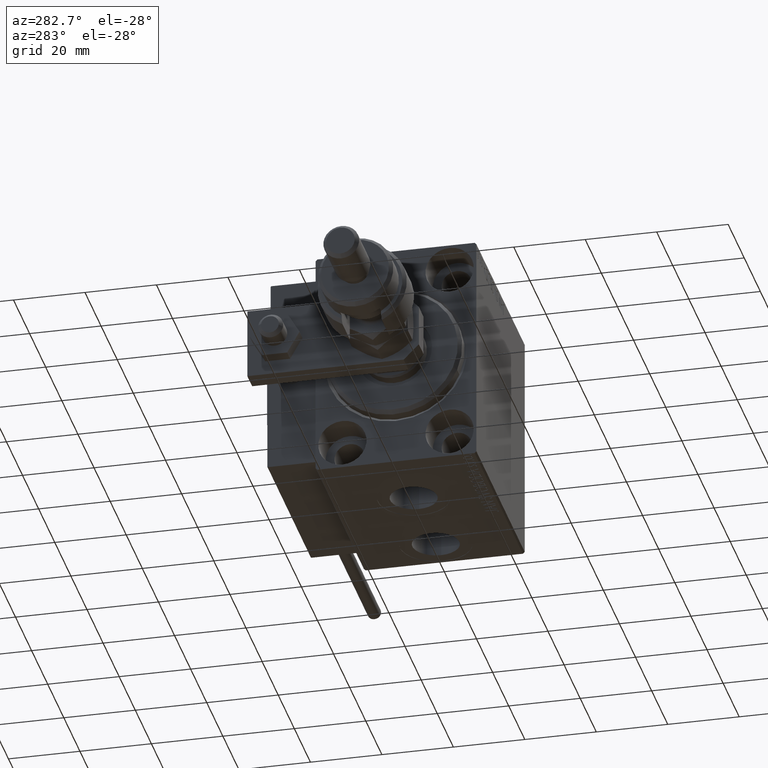
[diagram: clean part render]
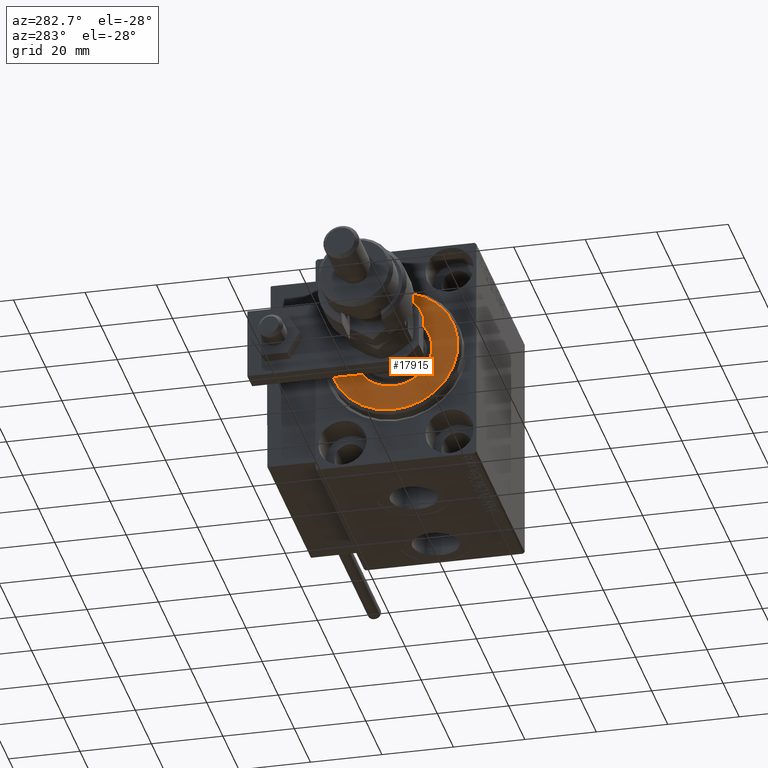
[diagram: same view with one face highlighted and labeled with its STEP entity id]
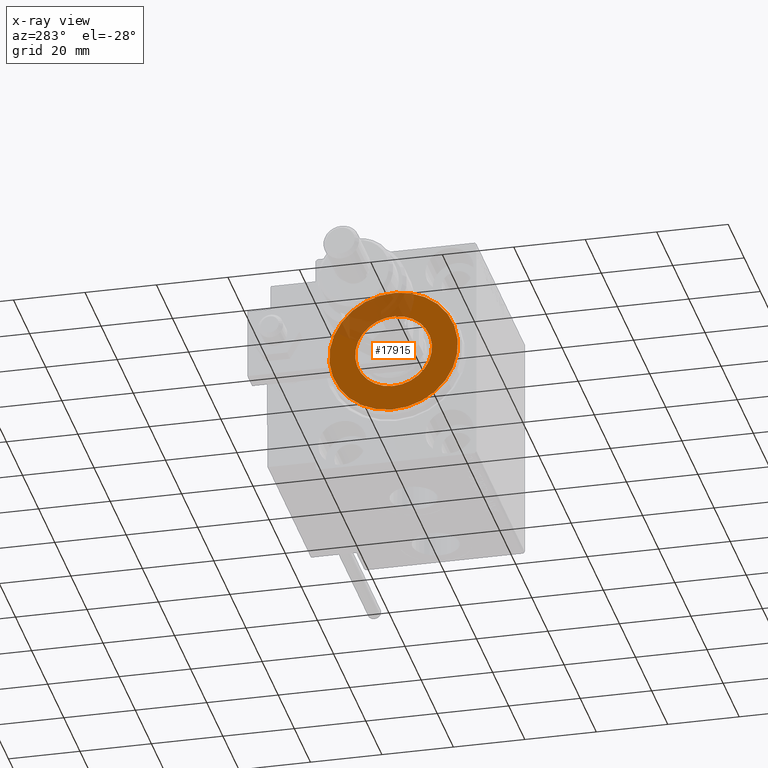
[diagram: x-ray of the same camera — body ghosted, the highlighted face saturated]
A machine part, auxiliary view. The second image highlights one B-rep face of the part: STEP entity #17915.
The next image is the same camera in x-ray: the body ghosted, the highlighted face saturated — about 24% of this face is hidden behind the body in this view.
In plain terms, the highlighted planar face has unit normal (-1, 0, 0).
Its self-contained STEP definition (entity closure, byte-faithful):
#976 = PLANE ( 'NONE',  #7805 ) ;
#1003 = DIRECTION ( 'NONE',  ( 0.000000000000000000, 0.000000000000000000, -1.000000000000000000 ) ) ;
#3714 = CARTESIAN_POINT ( 'NONE',  ( 3.000000000000000000, 0.000000000000000000, 0.000000000000000000 ) ) ;
#4014 = DIRECTION ( 'NONE',  ( 0.000000000000000000, 0.000000000000000000, -1.000000000000000000 ) ) ;
#4288 = VERTEX_POINT ( 'NONE', #52879 ) ;
#4557 = FACE_BOUND ( 'NONE', #44961, .T. ) ;
#6260 = VERTEX_POINT ( 'NONE', #15429 ) ;
#7047 = CIRCLE ( 'NONE', #39527, 10.75000000000000000 ) ;
#7805 = AXIS2_PLACEMENT_3D ( 'NONE', #12800, #29838, #4014 ) ;
#10299 = CIRCLE ( 'NONE', #41032, 10.75000000000000000 ) ;
#12325 = EDGE_CURVE ( 'NONE', #23539, #4288, #10299, .T. ) ;
#12800 = CARTESIAN_POINT ( 'NONE',  ( 3.000000000000000000, 0.000000000000000000, 0.000000000000000000 ) ) ;
#13237 = DIRECTION ( 'NONE',  ( 0.000000000000000000, 0.000000000000000000, -1.000000000000000000 ) ) ;
#14355 = DIRECTION ( 'NONE',  ( 1.000000000000000000, -0.000000000000000000, 0.000000000000000000 ) ) ;
#15429 = CARTESIAN_POINT ( 'NONE',  ( 3.000000000000000000, 0.000000000000000000, 17.99999999999998934 ) ) ;
#15696 = VERTEX_POINT ( 'NONE', #19707 ) ;
#16347 = DIRECTION ( 'NONE',  ( 0.000000000000000000, 0.000000000000000000, -1.000000000000000000 ) ) ;
#17913 = CIRCLE ( 'NONE', #24824, 17.99999999999998934 ) ;
#17915 = ADVANCED_FACE ( 'NONE', ( #50472, #4557 ), #976, .T. ) ;
#19707 = CARTESIAN_POINT ( 'NONE',  ( 3.000000000000000000, 2.265596578422602607E-15, -17.99999999999998934 ) ) ;
#20157 = AXIS2_PLACEMENT_3D ( 'NONE', #52023, #14355, #27012 ) ;
#21237 = EDGE_CURVE ( 'NONE', #4288, #23539, #7047, .T. ) ;
#22957 = CARTESIAN_POINT ( 'NONE',  ( 3.000000000000000000, 0.000000000000000000, 0.000000000000000000 ) ) ;
#23410 = ORIENTED_EDGE ( 'NONE', *, *, #12325, .T. ) ;
#23539 = VERTEX_POINT ( 'NONE', #28327 ) ;
#24824 = AXIS2_PLACEMENT_3D ( 'NONE', #3714, #37778, #16347 ) ;
#27012 = DIRECTION ( 'NONE',  ( 0.000000000000000000, 0.000000000000000000, -1.000000000000000000 ) ) ;
#28327 = CARTESIAN_POINT ( 'NONE',  ( 3.000000000000000000, 0.000000000000000000, 10.75000000000000000 ) ) ;
#29838 = DIRECTION ( 'NONE',  ( 1.000000000000000000, -0.000000000000000000, 0.000000000000000000 ) ) ;
#31219 = EDGE_LOOP ( 'NONE', ( #47622, #43116 ) ) ;
#35590 = EDGE_CURVE ( 'NONE', #15696, #6260, #49146, .T. ) ;
#37778 = DIRECTION ( 'NONE',  ( 1.000000000000000000, -0.000000000000000000, 0.000000000000000000 ) ) ;
#38249 = CARTESIAN_POINT ( 'NONE',  ( 3.000000000000000000, 0.000000000000000000, 0.000000000000000000 ) ) ;
#39173 = DIRECTION ( 'NONE',  ( -1.000000000000000000, 0.000000000000000000, -0.000000000000000000 ) ) ;
#39527 = AXIS2_PLACEMENT_3D ( 'NONE', #22957, #39173, #1003 ) ;
#41032 = AXIS2_PLACEMENT_3D ( 'NONE', #38249, #50911, #13237 ) ;
#43116 = ORIENTED_EDGE ( 'NONE', *, *, #35590, .T. ) ;
#44961 = EDGE_LOOP ( 'NONE', ( #23410, #49787 ) ) ;
#47622 = ORIENTED_EDGE ( 'NONE', *, *, #49239, .T. ) ;
#49146 = CIRCLE ( 'NONE', #20157, 17.99999999999998934 ) ;
#49239 = EDGE_CURVE ( 'NONE', #6260, #15696, #17913, .T. ) ;
#49787 = ORIENTED_EDGE ( 'NONE', *, *, #21237, .T. ) ;
#50472 = FACE_OUTER_BOUND ( 'NONE', #31219, .T. ) ;
#50911 = DIRECTION ( 'NONE',  ( -1.000000000000000000, 0.000000000000000000, -0.000000000000000000 ) ) ;
#52023 = CARTESIAN_POINT ( 'NONE',  ( 3.000000000000000000, 0.000000000000000000, 0.000000000000000000 ) ) ;
#52879 = CARTESIAN_POINT ( 'NONE',  ( 3.000000000000000000, 1.316495309083404223E-15, -10.75000000000000000 ) ) ;